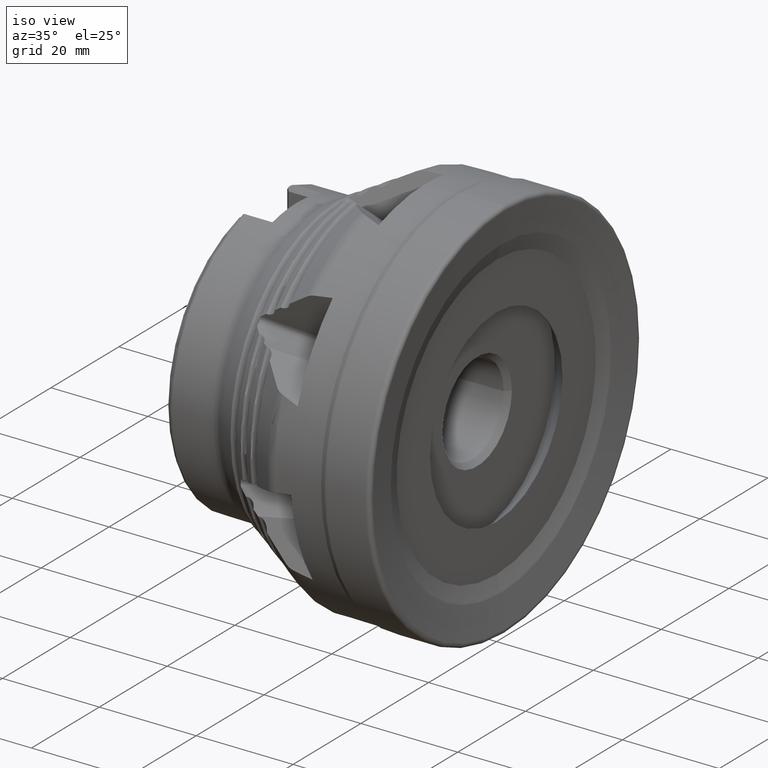
[diagram: clean part render]
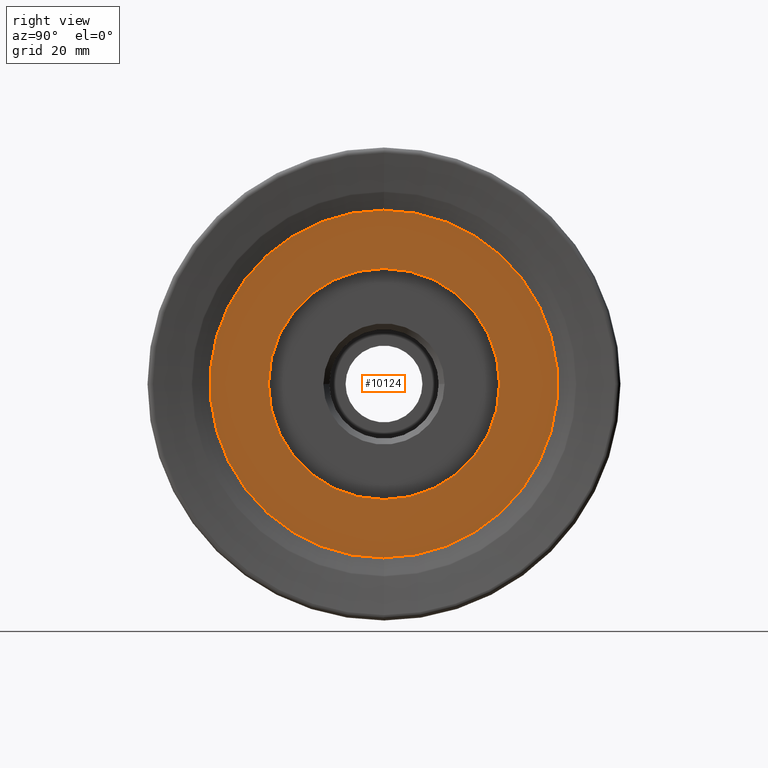
[diagram: tour spotlight — one face highlighted and labeled with its STEP entity id]
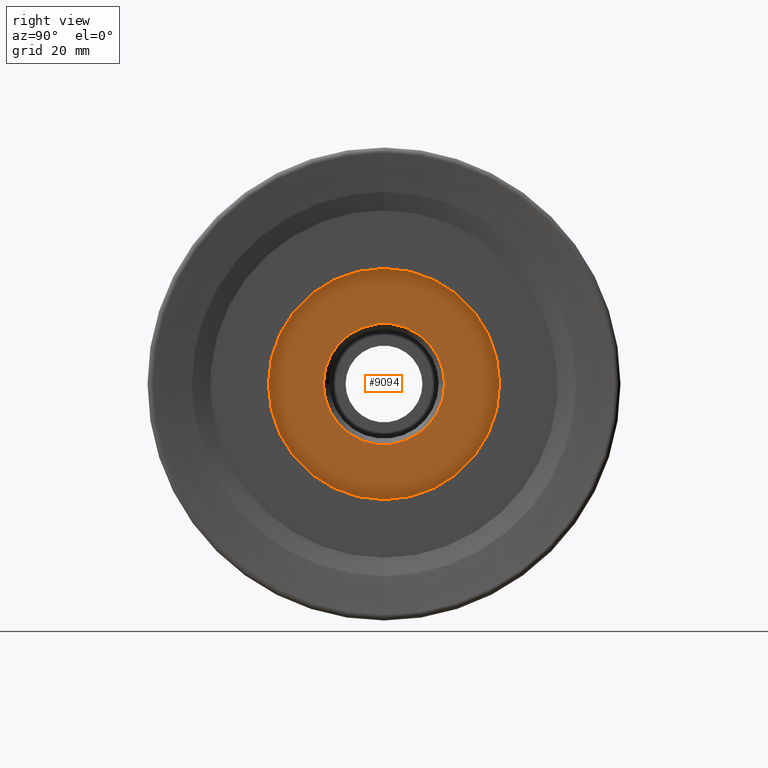
[diagram: tour spotlight — one face highlighted and labeled with its STEP entity id]
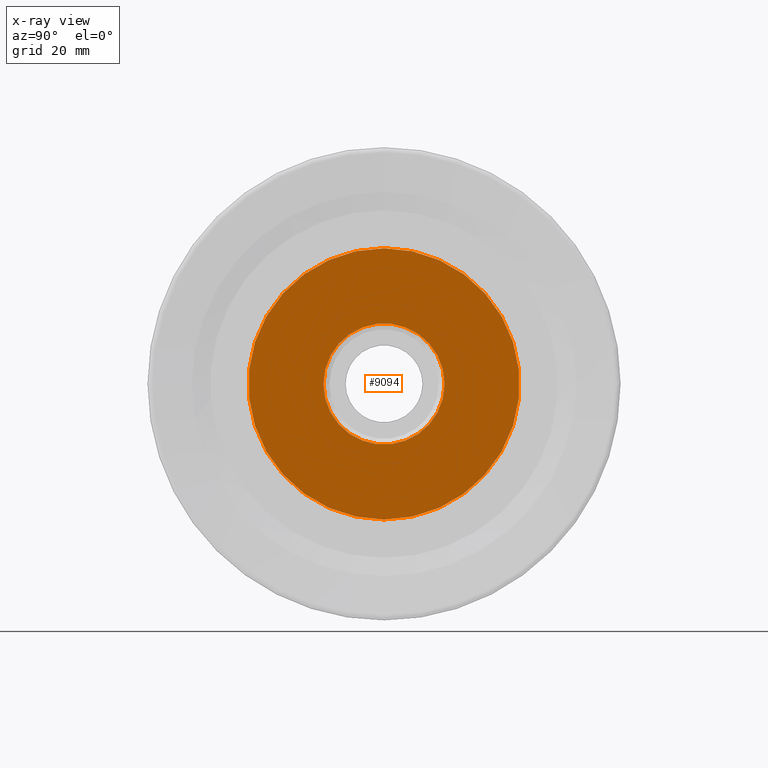
[diagram: x-ray of the same camera — body ghosted, this tour face saturated]
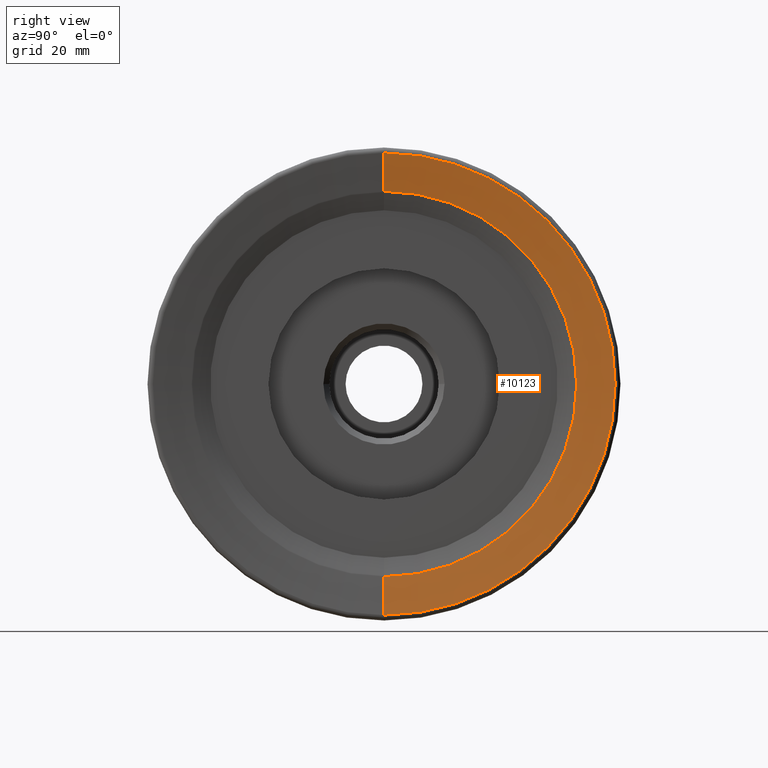
[diagram: tour spotlight — one face highlighted and labeled with its STEP entity id]
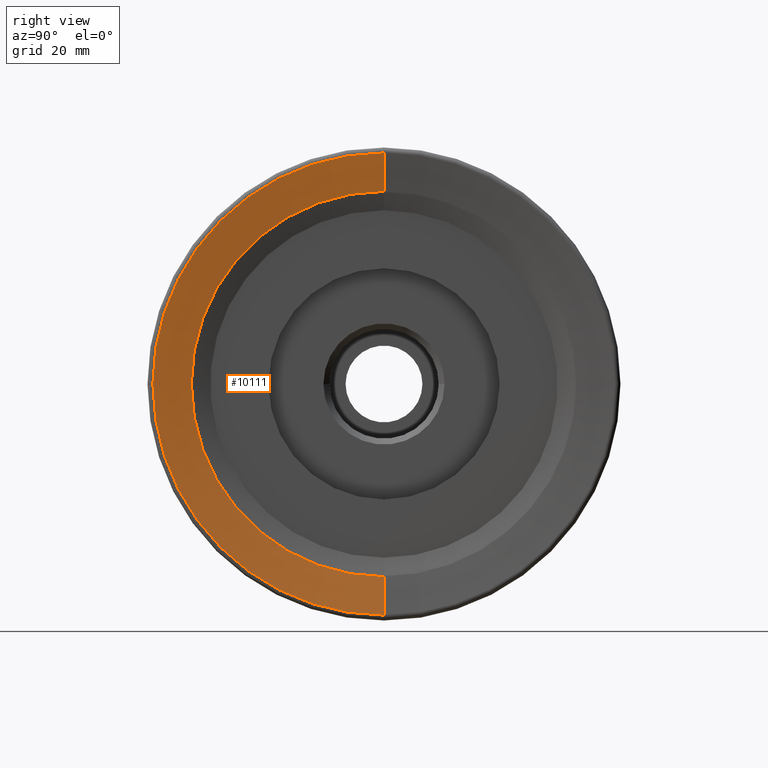
[diagram: tour spotlight — one face highlighted and labeled with its STEP entity id]
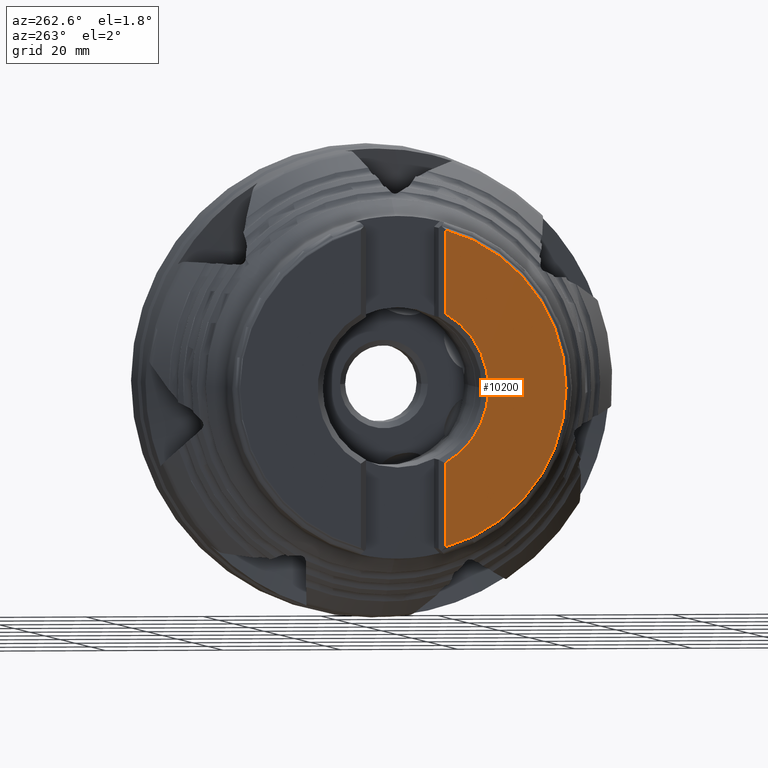
[diagram: tour spotlight — one face highlighted and labeled with its STEP entity id]
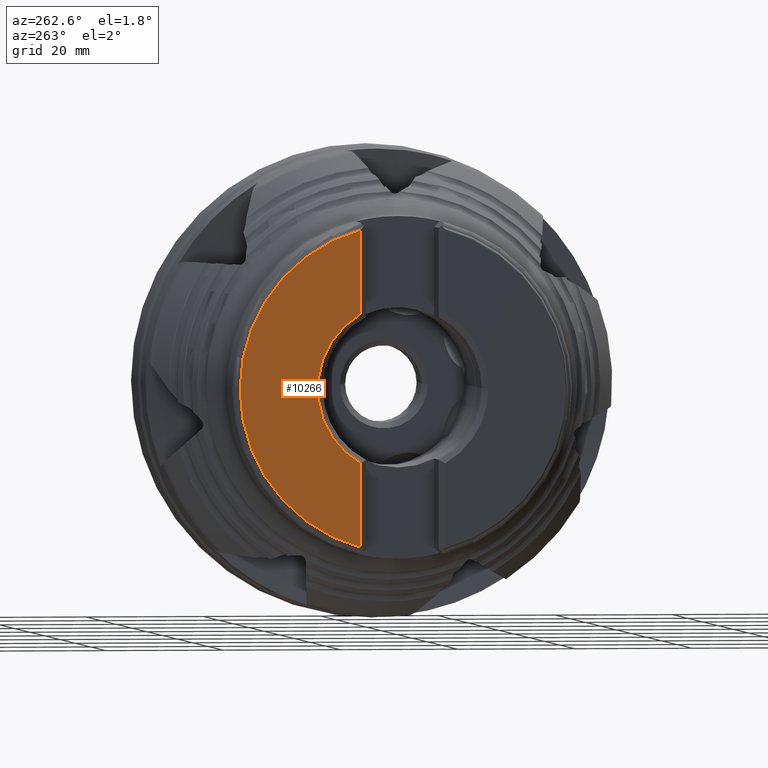
[diagram: tour spotlight — one face highlighted and labeled with its STEP entity id]
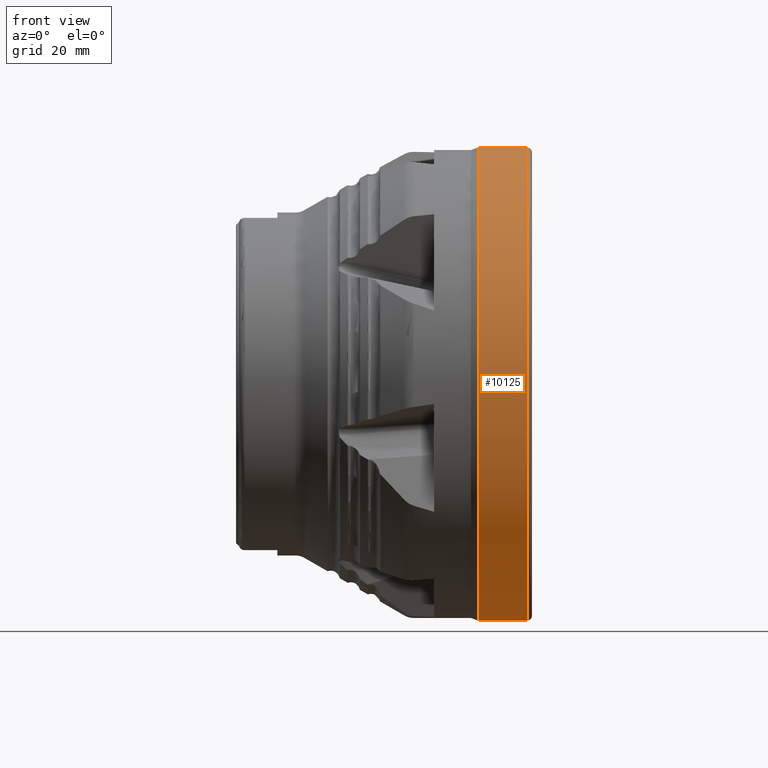
[diagram: tour spotlight — one face highlighted and labeled with its STEP entity id]
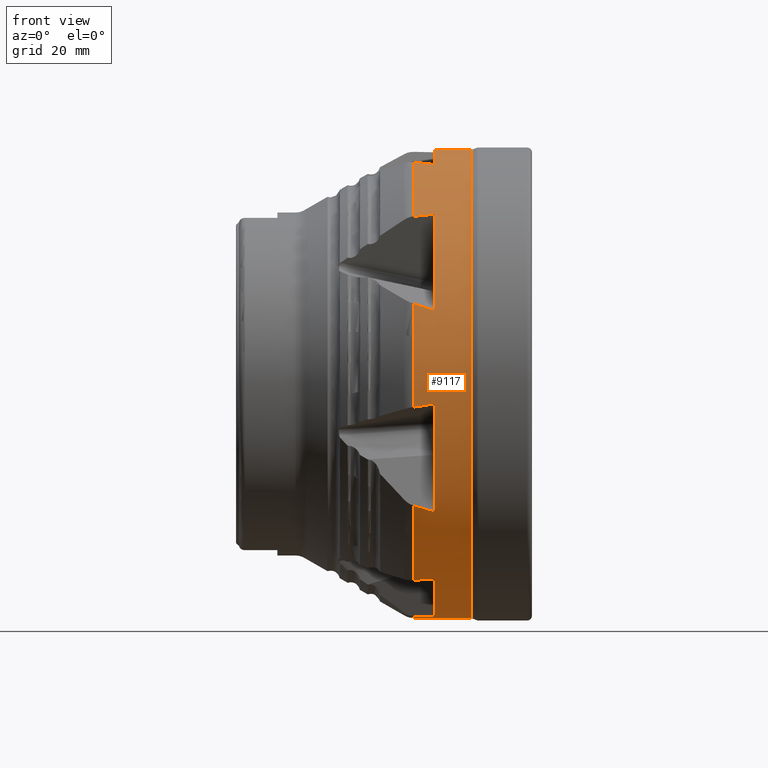
[diagram: tour spotlight — one face highlighted and labeled with its STEP entity id]
A machine part: a face-by-face anatomy tour. The part has 360 B-rep faces; the first image is the clean iso view, then the 8 largest visible faces are spotlighted one at a time (largest first), each with its STEP entity span.

Face 1 — right view, entity #10124. In plain terms, the highlighted planar face has unit normal (-1, 0, 0).
Definition (entity closure, byte-faithful):
#232 = CARTESIAN_POINT ( 'NONE',  ( -0.05000000000010915900, -19.55296481233887800, 0.0000000000000000000 ) ) ;
#233 = PLANE ( 'NONE',  #5952 ) ;
#234 = DIRECTION ( 'NONE',  ( -1.000000000000000000, 0.0000000000000000000, 0.0000000000000000000 ) ) ;
#235 = DIRECTION ( 'NONE',  ( 0.0000000000000000000, 0.0000000000000000000, 1.000000000000000000 ) ) ;
#4738 = EDGE_LOOP ( 'NONE', ( #6216, #6173 ) ) ;
#4741 = EDGE_LOOP ( 'NONE', ( #6239, #6407 ) ) ;
#5855 = AXIS2_PLACEMENT_3D ( 'NONE', #12273, #12280, #12281 ) ;
#5857 = AXIS2_PLACEMENT_3D ( 'NONE', #12279, #12285, #12286 ) ;
#5864 = AXIS2_PLACEMENT_3D ( 'NONE', #12329, #12331, #12332 ) ;
#5904 = AXIS2_PLACEMENT_3D ( 'NONE', #12943, #12945, #12946 ) ;
#5952 = AXIS2_PLACEMENT_3D ( 'NONE', #232, #234, #235 ) ;
#6173 = ORIENTED_EDGE ( 'NONE', *, *, #9911, .T. ) ;
#6216 = ORIENTED_EDGE ( 'NONE', *, *, #9897, .T. ) ;
#6239 = ORIENTED_EDGE ( 'NONE', *, *, #10045, .F. ) ;
#6407 = ORIENTED_EDGE ( 'NONE', *, *, #9895, .F. ) ;
#6508 = CARTESIAN_POINT ( 'NONE',  ( -0.05000000000010638300, 3.783971422271740700E-015, 29.38186664013200700 ) ) ;
#6638 = CARTESIAN_POINT ( 'NONE',  ( -0.05000000000011245400, 2.602331436804492900E-015, -19.55296481233887800 ) ) ;
#6699 = CARTESIAN_POINT ( 'NONE',  ( -0.05000000000010638300, 0.0000000000000000000, -29.38186664013200700 ) ) ;
#6861 = CARTESIAN_POINT ( 'NONE',  ( -0.05000000000011245400, 0.0000000000000000000, 19.55296481233887800 ) ) ;
#7034 = VERTEX_POINT ( 'NONE', #6508 ) ;
#7047 = VERTEX_POINT ( 'NONE', #6861 ) ;
#7178 = VERTEX_POINT ( 'NONE', #6699 ) ;
#7311 = VERTEX_POINT ( 'NONE', #6638 ) ;
#9895 = EDGE_CURVE ( 'NONE', #7311, #7047, #11075, .T. ) ;
#9897 = EDGE_CURVE ( 'NONE', #7178, #7034, #11077, .T. ) ;
#9911 = EDGE_CURVE ( 'NONE', #7034, #7178, #11087, .T. ) ;
#10045 = EDGE_CURVE ( 'NONE', #7047, #7311, #11159, .T. ) ;
#10124 = ADVANCED_FACE ( 'NONE', ( #11276, #11280 ), #233, .F. ) ;
#11075 = CIRCLE ( 'NONE', #5855, 19.55296481233887800 ) ;
#11077 = CIRCLE ( 'NONE', #5857, 29.38186664013200700 ) ;
#11087 = CIRCLE ( 'NONE', #5864, 29.38186664013200700 ) ;
#11159 = CIRCLE ( 'NONE', #5904, 19.55296481233887800 ) ;
#11276 = FACE_BOUND ( 'NONE', #4741, .T. ) ;
#11280 = FACE_OUTER_BOUND ( 'NONE', #4738, .T. ) ;
#12273 = CARTESIAN_POINT ( 'NONE',  ( -0.05000000000011245400, 0.0000000000000000000, 0.0000000000000000000 ) ) ;
#12279 = CARTESIAN_POINT ( 'NONE',  ( -0.05000000000010638300, 0.0000000000000000000, 0.0000000000000000000 ) ) ;
#12280 = DIRECTION ( 'NONE',  ( 1.000000000000000000, -0.0000000000000000000, -0.0000000000000000000 ) ) ;
#12281 = DIRECTION ( 'NONE',  ( 0.0000000000000000000, 0.0000000000000000000, -1.000000000000000000 ) ) ;
#12285 = DIRECTION ( 'NONE',  ( 1.000000000000000000, -0.0000000000000000000, -0.0000000000000000000 ) ) ;
#12286 = DIRECTION ( 'NONE',  ( 0.0000000000000000000, 0.0000000000000000000, -1.000000000000000000 ) ) ;
#12329 = CARTESIAN_POINT ( 'NONE',  ( -0.05000000000010638300, 0.0000000000000000000, 0.0000000000000000000 ) ) ;
#12331 = DIRECTION ( 'NONE',  ( 1.000000000000000000, -0.0000000000000000000, -0.0000000000000000000 ) ) ;
#12332 = DIRECTION ( 'NONE',  ( 0.0000000000000000000, 0.0000000000000000000, -1.000000000000000000 ) ) ;
#12943 = CARTESIAN_POINT ( 'NONE',  ( -0.05000000000011245400, 0.0000000000000000000, 0.0000000000000000000 ) ) ;
#12945 = DIRECTION ( 'NONE',  ( 1.000000000000000000, -0.0000000000000000000, -0.0000000000000000000 ) ) ;
#12946 = DIRECTION ( 'NONE',  ( 0.0000000000000000000, 0.0000000000000000000, -1.000000000000000000 ) ) ;

Face 2 — right view, entity #9094. An x-ray twin of the same camera follows (body ghosted, this face saturated) — the face is partly hidden behind the body. In plain terms, the highlighted planar face has unit normal (-1, -0, 0).
Definition (entity closure, byte-faithful):
#2146 = ORIENTED_EDGE ( 'NONE', *, *, #7662, .F. ) ;
#2255 = ORIENTED_EDGE ( 'NONE', *, *, #10047, .F. ) ;
#2305 = VERTEX_POINT ( 'NONE', #2375 ) ;
#2333 = VERTEX_POINT ( 'NONE', #2372 ) ;
#2372 = CARTESIAN_POINT ( 'NONE',  ( -3.999999999999997300, 0.0000000000000000000, 22.94633275846010500 ) ) ;
#2375 = CARTESIAN_POINT ( 'NONE',  ( -3.999999999999996400, -10.25000000000000000, 1.255262969126037200E-015 ) ) ;
#2644 = DIRECTION ( 'NONE',  ( -8.462065736472229800E-017, 1.000000000000000000, 0.0000000000000000000 ) ) ;
#2766 = CARTESIAN_POINT ( 'NONE',  ( -3.999999999999997300, -4.898425415289506100E-016, 0.0000000000000000000 ) ) ;
#2822 = ORIENTED_EDGE ( 'NONE', *, *, #10025, .F. ) ;
#2850 = ORIENTED_EDGE ( 'NONE', *, *, #7663, .F. ) ;
#2918 = DIRECTION ( 'NONE',  ( 1.000000000000000000, 1.224606353822377300E-016, -0.0000000000000000000 ) ) ;
#3251 = CARTESIAN_POINT ( 'NONE',  ( -4.000000000000000000, 23.30000000000000100, 0.0000000000000000000 ) ) ;
#3252 = PLANE ( 'NONE',  #5682 ) ;
#3253 = DIRECTION ( 'NONE',  ( -1.000000000000000000, -1.224606353822377300E-016, 0.0000000000000000000 ) ) ;
#3254 = DIRECTION ( 'NONE',  ( 1.224606353822377300E-016, -1.000000000000000000, 0.0000000000000000000 ) ) ;
#4579 = EDGE_LOOP ( 'NONE', ( #2850, #2822 ) ) ;
#4581 = EDGE_LOOP ( 'NONE', ( #2146, #2255 ) ) ;
#5110 = CIRCLE ( 'NONE', #5511, 10.25000000000000000 ) ;
#5111 = CIRCLE ( 'NONE', #5514, 22.94633275846010500 ) ;
#5511 = AXIS2_PLACEMENT_3D ( 'NONE', #2766, #2918, #2644 ) ;
#5514 = AXIS2_PLACEMENT_3D ( 'NONE', #11596, #11594, #8652 ) ;
#5682 = AXIS2_PLACEMENT_3D ( 'NONE', #3251, #3253, #3254 ) ;
#5891 = AXIS2_PLACEMENT_3D ( 'NONE', #12822, #12823, #12824 ) ;
#5906 = AXIS2_PLACEMENT_3D ( 'NONE', #12952, #12953, #12954 ) ;
#6446 = CARTESIAN_POINT ( 'NONE',  ( -3.999999999999997300, 2.810115296481822400E-015, -22.94633275846010500 ) ) ;
#6775 = CARTESIAN_POINT ( 'NONE',  ( -3.999999999999998200, 10.25000000000000000, 0.0000000000000000000 ) ) ;
#7161 = VERTEX_POINT ( 'NONE', #6446 ) ;
#7341 = VERTEX_POINT ( 'NONE', #6775 ) ;
#7662 = EDGE_CURVE ( 'NONE', #7341, #2305, #5110, .T. ) ;
#7663 = EDGE_CURVE ( 'NONE', #2333, #7161, #5111, .T. ) ;
#8652 = DIRECTION ( 'NONE',  ( 1.133987396311005500E-016, -1.000000000000000000, 0.0000000000000000000 ) ) ;
#9094 = ADVANCED_FACE ( 'NONE', ( #10728, #10731 ), #3252, .F. ) ;
#10025 = EDGE_CURVE ( 'NONE', #7161, #2333, #11143, .T. ) ;
#10047 = EDGE_CURVE ( 'NONE', #2305, #7341, #11162, .T. ) ;
#10728 = FACE_BOUND ( 'NONE', #4581, .T. ) ;
#10731 = FACE_OUTER_BOUND ( 'NONE', #4579, .T. ) ;
#11143 = CIRCLE ( 'NONE', #5891, 22.94633275846010500 ) ;
#11162 = CIRCLE ( 'NONE', #5906, 10.25000000000000000 ) ;
#11594 = DIRECTION ( 'NONE',  ( -1.000000000000000000, -1.224606353822377300E-016, 0.0000000000000000000 ) ) ;
#11596 = CARTESIAN_POINT ( 'NONE',  ( -3.999999999999997300, -3.381474524088730800E-015, 0.0000000000000000000 ) ) ;
#12822 = CARTESIAN_POINT ( 'NONE',  ( -3.999999999999997300, -3.381474524088730800E-015, 0.0000000000000000000 ) ) ;
#12823 = DIRECTION ( 'NONE',  ( -1.000000000000000000, -1.224606353822377300E-016, 0.0000000000000000000 ) ) ;
#12824 = DIRECTION ( 'NONE',  ( 1.133987396311005500E-016, -1.000000000000000000, 0.0000000000000000000 ) ) ;
#12952 = CARTESIAN_POINT ( 'NONE',  ( -3.999999999999997300, -4.898425415289506100E-016, 0.0000000000000000000 ) ) ;
#12953 = DIRECTION ( 'NONE',  ( 1.000000000000000000, 1.224606353822377300E-016, -0.0000000000000000000 ) ) ;
#12954 = DIRECTION ( 'NONE',  ( -8.462065736472229800E-017, 1.000000000000000000, 0.0000000000000000000 ) ) ;

Face 3 — right view, entity #10123. In plain terms, the highlighted conical surface has half-angle 82.288 deg.
Definition (entity closure, byte-faithful):
#223 = DIRECTION ( 'NONE',  ( 0.0000000000000000000, 0.0000000000000000000, -1.000000000000000000 ) ) ;
#229 = DIRECTION ( 'NONE',  ( 1.000000000000000000, -0.0000000000000000000, -0.0000000000000000000 ) ) ;
#230 = CARTESIAN_POINT ( 'NONE',  ( 1.795837475865317500, 0.0000000000000000000, 0.0000000000000000000 ) ) ;
#2322 = VERTEX_POINT ( 'NONE', #2499 ) ;
#2499 = CARTESIAN_POINT ( 'NONE',  ( 1.795837475865317500, 4.786855113661762100E-015, 39.08763830513873200 ) ) ;
#4743 = EDGE_LOOP ( 'NONE', ( #6326, #6194, #6247, #6203 ) ) ;
#5869 = AXIS2_PLACEMENT_3D ( 'NONE', #12453, #12460, #12461 ) ;
#5900 = AXIS2_PLACEMENT_3D ( 'NONE', #12880, #12896, #12897 ) ;
#5972 = AXIS2_PLACEMENT_3D ( 'NONE', #230, #229, #223 ) ;
#6194 = ORIENTED_EDGE ( 'NONE', *, *, #9949, .F. ) ;
#6203 = ORIENTED_EDGE ( 'NONE', *, *, #10035, .T. ) ;
#6247 = ORIENTED_EDGE ( 'NONE', *, *, #9980, .T. ) ;
#6326 = ORIENTED_EDGE ( 'NONE', *, *, #9962, .F. ) ;
#6645 = CARTESIAN_POINT ( 'NONE',  ( 1.795837475865317500, 0.0000000000000000000, -39.08763830513873200 ) ) ;
#6697 = CARTESIAN_POINT ( 'NONE',  ( 0.9162408097098568800, 0.0000000000000000000, -32.59263010940147600 ) ) ;
#6751 = CARTESIAN_POINT ( 'NONE',  ( 0.9162408097098568800, 4.389150563794489400E-015, 32.59263010940147600 ) ) ;
#7029 = VERTEX_POINT ( 'NONE', #6645 ) ;
#7169 = VERTEX_POINT ( 'NONE', #6697 ) ;
#7322 = VERTEX_POINT ( 'NONE', #6751 ) ;
#9949 = EDGE_CURVE ( 'NONE', #7169, #7322, #11108, .T. ) ;
#9962 = EDGE_CURVE ( 'NONE', #7322, #2322, #11115, .T. ) ;
#9980 = EDGE_CURVE ( 'NONE', #7169, #7029, #11116, .T. ) ;
#10035 = EDGE_CURVE ( 'NONE', #7029, #2322, #11150, .T. ) ;
#10123 = ADVANCED_FACE ( 'NONE', ( #11275 ), #11274, .F. ) ;
#11108 = CIRCLE ( 'NONE', #5869, 32.59263010940147600 ) ;
#11113 = VECTOR ( 'NONE', #12542, 1000.000000000000000 ) ;
#11115 = LINE ( 'NONE', #12541, #11113 ) ;
#11116 = LINE ( 'NONE', #12600, #11122 ) ;
#11122 = VECTOR ( 'NONE', #12602, 1000.000000000000000 ) ;
#11150 = CIRCLE ( 'NONE', #5900, 39.08763830513873200 ) ;
#11274 = CONICAL_SURFACE ( 'NONE', #5972, 39.08763830513873200, 1.436188690054001500 ) ;
#11275 = FACE_OUTER_BOUND ( 'NONE', #4743, .T. ) ;
#12453 = CARTESIAN_POINT ( 'NONE',  ( 0.9162408097098568800, 0.0000000000000000000, 0.0000000000000000000 ) ) ;
#12460 = DIRECTION ( 'NONE',  ( 1.000000000000000000, -0.0000000000000000000, -0.0000000000000000000 ) ) ;
#12461 = DIRECTION ( 'NONE',  ( 0.0000000000000000000, 0.0000000000000000000, -1.000000000000000000 ) ) ;
#12541 = CARTESIAN_POINT ( 'NONE',  ( 1.795837475865317500, 4.786855113661762100E-015, 39.08763830513873200 ) ) ;
#12542 = DIRECTION ( 'NONE',  ( 0.1342015073815443800, 1.213568721627090000E-016, 0.9909540632221663900 ) ) ;
#12600 = CARTESIAN_POINT ( 'NONE',  ( 1.795837475865317500, 0.0000000000000000000, -39.08763830513873200 ) ) ;
#12602 = DIRECTION ( 'NONE',  ( 0.1342015073815443800, 0.0000000000000000000, -0.9909540632221663900 ) ) ;
#12880 = CARTESIAN_POINT ( 'NONE',  ( 1.795837475865317500, 0.0000000000000000000, 0.0000000000000000000 ) ) ;
#12896 = DIRECTION ( 'NONE',  ( 1.000000000000000000, -0.0000000000000000000, -0.0000000000000000000 ) ) ;
#12897 = DIRECTION ( 'NONE',  ( 0.0000000000000000000, 0.0000000000000000000, -1.000000000000000000 ) ) ;

Face 4 — right view, entity #10111. In plain terms, the highlighted conical surface has half-angle 82.288 deg.
Definition (entity closure, byte-faithful):
#181 = DIRECTION ( 'NONE',  ( 0.0000000000000000000, 0.0000000000000000000, -1.000000000000000000 ) ) ;
#189 = DIRECTION ( 'NONE',  ( 1.000000000000000000, -0.0000000000000000000, -0.0000000000000000000 ) ) ;
#190 = CARTESIAN_POINT ( 'NONE',  ( 1.795837475865317500, 0.0000000000000000000, 0.0000000000000000000 ) ) ;
#1420 = ORIENTED_EDGE ( 'NONE', *, *, #9969, .F. ) ;
#1435 = ORIENTED_EDGE ( 'NONE', *, *, #9980, .F. ) ;
#1473 = ORIENTED_EDGE ( 'NONE', *, *, #9962, .T. ) ;
#1625 = ORIENTED_EDGE ( 'NONE', *, *, #7454, .T. ) ;
#2322 = VERTEX_POINT ( 'NONE', #2499 ) ;
#2499 = CARTESIAN_POINT ( 'NONE',  ( 1.795837475865317500, 4.786855113661762100E-015, 39.08763830513873200 ) ) ;
#4638 = EDGE_LOOP ( 'NONE', ( #1420, #1473, #1625, #1435 ) ) ;
#4909 = CIRCLE ( 'NONE', #7978, 39.08763830513873200 ) ;
#5882 = AXIS2_PLACEMENT_3D ( 'NONE', #12555, #12561, #12562 ) ;
#5960 = AXIS2_PLACEMENT_3D ( 'NONE', #190, #189, #181 ) ;
#6474 = DIRECTION ( 'NONE',  ( 0.0000000000000000000, 0.0000000000000000000, -1.000000000000000000 ) ) ;
#6645 = CARTESIAN_POINT ( 'NONE',  ( 1.795837475865317500, 0.0000000000000000000, -39.08763830513873200 ) ) ;
#6697 = CARTESIAN_POINT ( 'NONE',  ( 0.9162408097098568800, 0.0000000000000000000, -32.59263010940147600 ) ) ;
#6751 = CARTESIAN_POINT ( 'NONE',  ( 0.9162408097098568800, 4.389150563794489400E-015, 32.59263010940147600 ) ) ;
#6858 = CARTESIAN_POINT ( 'NONE',  ( 1.795837475865317500, 0.0000000000000000000, 0.0000000000000000000 ) ) ;
#6859 = DIRECTION ( 'NONE',  ( 1.000000000000000000, -0.0000000000000000000, -0.0000000000000000000 ) ) ;
#7029 = VERTEX_POINT ( 'NONE', #6645 ) ;
#7169 = VERTEX_POINT ( 'NONE', #6697 ) ;
#7322 = VERTEX_POINT ( 'NONE', #6751 ) ;
#7454 = EDGE_CURVE ( 'NONE', #2322, #7029, #4909, .T. ) ;
#7978 = AXIS2_PLACEMENT_3D ( 'NONE', #6858, #6859, #6474 ) ;
#9962 = EDGE_CURVE ( 'NONE', #7322, #2322, #11115, .T. ) ;
#9969 = EDGE_CURVE ( 'NONE', #7322, #7169, #11121, .T. ) ;
#9980 = EDGE_CURVE ( 'NONE', #7169, #7029, #11116, .T. ) ;
#10111 = ADVANCED_FACE ( 'NONE', ( #11251 ), #11253, .F. ) ;
#11113 = VECTOR ( 'NONE', #12542, 1000.000000000000000 ) ;
#11115 = LINE ( 'NONE', #12541, #11113 ) ;
#11116 = LINE ( 'NONE', #12600, #11122 ) ;
#11121 = CIRCLE ( 'NONE', #5882, 32.59263010940147600 ) ;
#11122 = VECTOR ( 'NONE', #12602, 1000.000000000000000 ) ;
#11251 = FACE_OUTER_BOUND ( 'NONE', #4638, .T. ) ;
#11253 = CONICAL_SURFACE ( 'NONE', #5960, 39.08763830513873200, 1.436188690054001500 ) ;
#12541 = CARTESIAN_POINT ( 'NONE',  ( 1.795837475865317500, 4.786855113661762100E-015, 39.08763830513873200 ) ) ;
#12542 = DIRECTION ( 'NONE',  ( 0.1342015073815443800, 1.213568721627090000E-016, 0.9909540632221663900 ) ) ;
#12555 = CARTESIAN_POINT ( 'NONE',  ( 0.9162408097098568800, 0.0000000000000000000, 0.0000000000000000000 ) ) ;
#12561 = DIRECTION ( 'NONE',  ( 1.000000000000000000, -0.0000000000000000000, -0.0000000000000000000 ) ) ;
#12562 = DIRECTION ( 'NONE',  ( 0.0000000000000000000, 0.0000000000000000000, -1.000000000000000000 ) ) ;
#12600 = CARTESIAN_POINT ( 'NONE',  ( 1.795837475865317500, 0.0000000000000000000, -39.08763830513873200 ) ) ;
#12602 = DIRECTION ( 'NONE',  ( 0.1342015073815443800, 0.0000000000000000000, -0.9909540632221663900 ) ) ;

Face 5 — auxiliary view, entity #10200. In plain terms, the highlighted planar face has unit normal (-1, 0, 0).
Definition (entity closure, byte-faithful):
#466 = CARTESIAN_POINT ( 'NONE',  ( -48.25000000000008500, 27.78759070216124600, 0.0000000000000000000 ) ) ;
#467 = PLANE ( 'NONE',  #960 ) ;
#469 = DIRECTION ( 'NONE',  ( -1.000000000000000000, 0.0000000000000000000, 0.0000000000000000000 ) ) ;
#470 = DIRECTION ( 'NONE',  ( 0.0000000000000000000, 0.0000000000000000000, 1.000000000000000000 ) ) ;
#960 = AXIS2_PLACEMENT_3D ( 'NONE', #466, #469, #470 ) ;
#1170 = CARTESIAN_POINT ( 'NONE',  ( -48.25000000000017100, -5.908725657192990800E-015, 0.0000000000000000000 ) ) ;
#1172 = DIRECTION ( 'NONE',  ( 1.000000000000000000, 1.224606353822377300E-016, -0.0000000000000000000 ) ) ;
#1174 = DIRECTION ( 'NONE',  ( 0.0000000000000000000, 1.000000000000000000, 0.0000000000000000000 ) ) ;
#4787 = EDGE_LOOP ( 'NONE', ( #6303, #6349, #6290, #6367, #6423 ) ) ;
#4982 = CIRCLE ( 'NONE', #8000, 14.57500000000001000 ) ;
#5829 = AXIS2_PLACEMENT_3D ( 'NONE', #12075, #12086, #12087 ) ;
#5839 = AXIS2_PLACEMENT_3D ( 'NONE', #12180, #12184, #12185 ) ;
#6290 = ORIENTED_EDGE ( 'NONE', *, *, #7515, .T. ) ;
#6303 = ORIENTED_EDGE ( 'NONE', *, *, #9830, .F. ) ;
#6349 = ORIENTED_EDGE ( 'NONE', *, *, #9843, .T. ) ;
#6367 = ORIENTED_EDGE ( 'NONE', *, *, #9856, .T. ) ;
#6423 = ORIENTED_EDGE ( 'NONE', *, *, #9857, .T. ) ;
#6456 = CARTESIAN_POINT ( 'NONE',  ( -48.25000000000017100, -7.200000000000002800, -12.67243563802950800 ) ) ;
#6541 = CARTESIAN_POINT ( 'NONE',  ( -48.25000000000017100, -7.200000000000002800, 26.83859528795868600 ) ) ;
#6605 = CARTESIAN_POINT ( 'NONE',  ( -48.25000000000017100, -7.200000000000080100, -26.83859528795866800 ) ) ;
#6621 = CARTESIAN_POINT ( 'NONE',  ( -48.25000000000017100, -7.200000000000085400, 12.67243563802946000 ) ) ;
#6730 = CARTESIAN_POINT ( 'NONE',  ( -48.25000000000017100, -14.57500000000001400, 0.0000000000000000000 ) ) ;
#7063 = VERTEX_POINT ( 'NONE', #6456 ) ;
#7097 = VERTEX_POINT ( 'NONE', #6730 ) ;
#7264 = VERTEX_POINT ( 'NONE', #6541 ) ;
#7284 = VERTEX_POINT ( 'NONE', #6605 ) ;
#7297 = VERTEX_POINT ( 'NONE', #6621 ) ;
#7515 = EDGE_CURVE ( 'NONE', #7297, #7097, #4982, .T. ) ;
#8000 = AXIS2_PLACEMENT_3D ( 'NONE', #1170, #1172, #1174 ) ;
#9830 = EDGE_CURVE ( 'NONE', #7264, #7284, #10997, .T. ) ;
#9843 = EDGE_CURVE ( 'NONE', #7264, #7297, #10999, .T. ) ;
#9856 = EDGE_CURVE ( 'NONE', #7097, #7063, #11018, .T. ) ;
#9857 = EDGE_CURVE ( 'NONE', #7063, #7284, #11015, .T. ) ;
#10200 = ADVANCED_FACE ( 'NONE', ( #11424 ), #467, .T. ) ;
#10997 = CIRCLE ( 'NONE', #5829, 27.78759070216124600 ) ;
#10999 = LINE ( 'NONE', #12132, #11004 ) ;
#11004 = VECTOR ( 'NONE', #12133, 1000.000000000000000 ) ;
#11010 = VECTOR ( 'NONE', #12187, 1000.000000000000000 ) ;
#11015 = LINE ( 'NONE', #12186, #11010 ) ;
#11018 = CIRCLE ( 'NONE', #5839, 14.57500000000001000 ) ;
#11424 = FACE_OUTER_BOUND ( 'NONE', #4787, .T. ) ;
#12075 = CARTESIAN_POINT ( 'NONE',  ( -48.25000000000017100, 0.0000000000000000000, 0.0000000000000000000 ) ) ;
#12086 = DIRECTION ( 'NONE',  ( 1.000000000000000000, -0.0000000000000000000, -0.0000000000000000000 ) ) ;
#12087 = DIRECTION ( 'NONE',  ( 0.0000000000000000000, 0.0000000000000000000, -1.000000000000000000 ) ) ;
#12132 = CARTESIAN_POINT ( 'NONE',  ( -48.25000000000008500, -7.200000000000003700, 13.19055059502816000 ) ) ;
#12133 = DIRECTION ( 'NONE',  ( 0.0000000000000000000, -5.091729174068665400E-017, -1.000000000000000000 ) ) ;
#12180 = CARTESIAN_POINT ( 'NONE',  ( -48.25000000000017100, -5.908725657192990800E-015, 0.0000000000000000000 ) ) ;
#12184 = DIRECTION ( 'NONE',  ( 1.000000000000000000, 1.224606353822377300E-016, -0.0000000000000000000 ) ) ;
#12185 = DIRECTION ( 'NONE',  ( 0.0000000000000000000, 1.000000000000000000, 0.0000000000000000000 ) ) ;
#12186 = CARTESIAN_POINT ( 'NONE',  ( -48.25000000000008500, -7.199999999999997500, -27.08708542886883600 ) ) ;
#12187 = DIRECTION ( 'NONE',  ( 0.0000000000000000000, 3.055037504441199100E-016, -1.000000000000000000 ) ) ;

Face 6 — auxiliary view, entity #10266. In plain terms, the highlighted planar face has unit normal (-1, 0, 0).
Definition (entity closure, byte-faithful):
#667 = PLANE ( 'NONE',  #1038 ) ;
#676 = CARTESIAN_POINT ( 'NONE',  ( -48.25000000000008500, 27.78759070216124600, 0.0000000000000000000 ) ) ;
#684 = DIRECTION ( 'NONE',  ( -1.000000000000000000, 0.0000000000000000000, 0.0000000000000000000 ) ) ;
#685 = DIRECTION ( 'NONE',  ( 0.0000000000000000000, 0.0000000000000000000, 1.000000000000000000 ) ) ;
#1038 = AXIS2_PLACEMENT_3D ( 'NONE', #676, #684, #685 ) ;
#4798 = EDGE_LOOP ( 'NONE', ( #6149, #6410, #6208, #6329 ) ) ;
#5828 = AXIS2_PLACEMENT_3D ( 'NONE', #12064, #12066, #12067 ) ;
#5831 = AXIS2_PLACEMENT_3D ( 'NONE', #12102, #12104, #12105 ) ;
#6149 = ORIENTED_EDGE ( 'NONE', *, *, #9835, .T. ) ;
#6208 = ORIENTED_EDGE ( 'NONE', *, *, #9825, .F. ) ;
#6329 = ORIENTED_EDGE ( 'NONE', *, *, #9836, .T. ) ;
#6410 = ORIENTED_EDGE ( 'NONE', *, *, #9834, .T. ) ;
#6455 = CARTESIAN_POINT ( 'NONE',  ( -48.25000000000017100, 7.200000000000088100, 26.83859528795866100 ) ) ;
#6512 = CARTESIAN_POINT ( 'NONE',  ( -48.25000000000017100, 7.200000000000001100, -26.83859528795868600 ) ) ;
#6611 = CARTESIAN_POINT ( 'NONE',  ( -48.25000000000017100, 7.200000000000008200, 12.67243563802949600 ) ) ;
#6702 = CARTESIAN_POINT ( 'NONE',  ( -48.25000000000017100, 7.200000000000089000, -12.67243563802945200 ) ) ;
#7093 = VERTEX_POINT ( 'NONE', #6455 ) ;
#7094 = VERTEX_POINT ( 'NONE', #6702 ) ;
#7112 = VERTEX_POINT ( 'NONE', #6611 ) ;
#7246 = VERTEX_POINT ( 'NONE', #6512 ) ;
#9825 = EDGE_CURVE ( 'NONE', #7246, #7093, #10993, .T. ) ;
#9834 = EDGE_CURVE ( 'NONE', #7112, #7093, #10996, .T. ) ;
#9835 = EDGE_CURVE ( 'NONE', #7094, #7112, #11000, .T. ) ;
#9836 = EDGE_CURVE ( 'NONE', #7246, #7094, #10987, .T. ) ;
#10266 = ADVANCED_FACE ( 'NONE', ( #11540 ), #667, .T. ) ;
#10985 = VECTOR ( 'NONE', #12107, 1000.000000000000000 ) ;
#10987 = LINE ( 'NONE', #12106, #10985 ) ;
#10993 = CIRCLE ( 'NONE', #5828, 27.78759070216124600 ) ;
#10994 = VECTOR ( 'NONE', #12101, 1000.000000000000000 ) ;
#10996 = LINE ( 'NONE', #12100, #10994 ) ;
#11000 = CIRCLE ( 'NONE', #5831, 14.57500000000001000 ) ;
#11540 = FACE_OUTER_BOUND ( 'NONE', #4798, .T. ) ;
#12064 = CARTESIAN_POINT ( 'NONE',  ( -48.25000000000017100, 0.0000000000000000000, 0.0000000000000000000 ) ) ;
#12066 = DIRECTION ( 'NONE',  ( 1.000000000000000000, -0.0000000000000000000, -0.0000000000000000000 ) ) ;
#12067 = DIRECTION ( 'NONE',  ( 0.0000000000000000000, 0.0000000000000000000, -1.000000000000000000 ) ) ;
#12100 = CARTESIAN_POINT ( 'NONE',  ( -48.25000000000008500, 7.200000000000007300, 27.08708542886882900 ) ) ;
#12101 = DIRECTION ( 'NONE',  ( 0.0000000000000000000, -5.091729174068665400E-017, 1.000000000000000000 ) ) ;
#12102 = CARTESIAN_POINT ( 'NONE',  ( -48.25000000000017100, -5.908725657192990800E-015, 0.0000000000000000000 ) ) ;
#12104 = DIRECTION ( 'NONE',  ( 1.000000000000000000, 1.224606353822377300E-016, -0.0000000000000000000 ) ) ;
#12105 = DIRECTION ( 'NONE',  ( 0.0000000000000000000, 1.000000000000000000, 0.0000000000000000000 ) ) ;
#12106 = CARTESIAN_POINT ( 'NONE',  ( -48.25000000000008500, 7.200000000000003700, -13.19055059502815800 ) ) ;
#12107 = DIRECTION ( 'NONE',  ( 0.0000000000000000000, 3.055037504441199100E-016, 1.000000000000000000 ) ) ;

Face 7 — front view, entity #10125. In plain terms, the highlighted cylindrical surface (partial cylindrical patch) has radius 40 mm, axis along (1, -0, -0).
Definition (entity closure, byte-faithful):
#226 = DIRECTION ( 'NONE',  ( 0.0000000000000000000, 0.0000000000000000000, -1.000000000000000000 ) ) ;
#231 = DIRECTION ( 'NONE',  ( 1.000000000000000000, -0.0000000000000000000, -0.0000000000000000000 ) ) ;
#237 = CARTESIAN_POINT ( 'NONE',  ( 6.037240732218118700, 0.0000000000000000000, 0.0000000000000000000 ) ) ;
#2300 = VERTEX_POINT ( 'NONE', #2489 ) ;
#2306 = VERTEX_POINT ( 'NONE', #2374 ) ;
#2374 = CARTESIAN_POINT ( 'NONE',  ( 0.9987052883598619400, 0.0000000000000000000, -40.00000000000000000 ) ) ;
#2489 = CARTESIAN_POINT ( 'NONE',  ( -7.268364287083554300, 0.0000000000000000000, -40.00000000000000000 ) ) ;
#4735 = EDGE_LOOP ( 'NONE', ( #6142, #6325, #6388, #6184 ) ) ;
#4908 = VECTOR ( 'NONE', #9010, 1000.000000000000000 ) ;
#4913 = LINE ( 'NONE', #6453, #4908 ) ;
#4918 = VECTOR ( 'NONE', #8946, 1000.000000000000000 ) ;
#4925 = LINE ( 'NONE', #8929, #4918 ) ;
#5859 = AXIS2_PLACEMENT_3D ( 'NONE', #12284, #12292, #12293 ) ;
#5860 = AXIS2_PLACEMENT_3D ( 'NONE', #12288, #12295, #12296 ) ;
#5966 = AXIS2_PLACEMENT_3D ( 'NONE', #237, #231, #226 ) ;
#6142 = ORIENTED_EDGE ( 'NONE', *, *, #7459, .F. ) ;
#6184 = ORIENTED_EDGE ( 'NONE', *, *, #9900, .F. ) ;
#6325 = ORIENTED_EDGE ( 'NONE', *, *, #9899, .T. ) ;
#6388 = ORIENTED_EDGE ( 'NONE', *, *, #7469, .T. ) ;
#6453 = CARTESIAN_POINT ( 'NONE',  ( 6.037240732218118700, 4.898587196589413000E-015, 40.00000000000000000 ) ) ;
#6578 = CARTESIAN_POINT ( 'NONE',  ( -7.268364287083554300, 4.898587196589413000E-015, 40.00000000000000000 ) ) ;
#6659 = CARTESIAN_POINT ( 'NONE',  ( 0.9987052883598619400, 4.898587196589413000E-015, 40.00000000000000000 ) ) ;
#7150 = VERTEX_POINT ( 'NONE', #6578 ) ;
#7198 = VERTEX_POINT ( 'NONE', #6659 ) ;
#7459 = EDGE_CURVE ( 'NONE', #7150, #7198, #4913, .T. ) ;
#7469 = EDGE_CURVE ( 'NONE', #2300, #2306, #4925, .T. ) ;
#8929 = CARTESIAN_POINT ( 'NONE',  ( 6.037240732218118700, 0.0000000000000000000, -40.00000000000000000 ) ) ;
#8946 = DIRECTION ( 'NONE',  ( 1.000000000000000000, -0.0000000000000000000, -0.0000000000000000000 ) ) ;
#9010 = DIRECTION ( 'NONE',  ( 1.000000000000000000, -0.0000000000000000000, -0.0000000000000000000 ) ) ;
#9899 = EDGE_CURVE ( 'NONE', #7150, #2300, #11081, .T. ) ;
#9900 = EDGE_CURVE ( 'NONE', #7198, #2306, #11083, .T. ) ;
#10125 = ADVANCED_FACE ( 'NONE', ( #11281 ), #11282, .T. ) ;
#11081 = CIRCLE ( 'NONE', #5859, 40.00000000000000000 ) ;
#11083 = CIRCLE ( 'NONE', #5860, 40.00000000000000000 ) ;
#11281 = FACE_OUTER_BOUND ( 'NONE', #4735, .T. ) ;
#11282 = CYLINDRICAL_SURFACE ( 'NONE', #5966, 40.00000000000000000 ) ;
#12284 = CARTESIAN_POINT ( 'NONE',  ( -7.268364287083554300, 0.0000000000000000000, 0.0000000000000000000 ) ) ;
#12288 = CARTESIAN_POINT ( 'NONE',  ( 0.9987052883598619400, 0.0000000000000000000, 0.0000000000000000000 ) ) ;
#12292 = DIRECTION ( 'NONE',  ( 1.000000000000000000, -0.0000000000000000000, -0.0000000000000000000 ) ) ;
#12293 = DIRECTION ( 'NONE',  ( 0.0000000000000000000, 0.0000000000000000000, -1.000000000000000000 ) ) ;
#12295 = DIRECTION ( 'NONE',  ( 1.000000000000000000, -0.0000000000000000000, -0.0000000000000000000 ) ) ;
#12296 = DIRECTION ( 'NONE',  ( 0.0000000000000000000, 0.0000000000000000000, -1.000000000000000000 ) ) ;

Face 8 — front view, entity #9117. In plain terms, the highlighted cylindrical surface (partial cylindrical patch) has radius 39.575 mm, axis along (1, -0, -0).
Definition (entity closure, byte-faithful):
#797 = CARTESIAN_POINT ( 'NONE',  ( -18.25062266157716500, -21.50343707335374800, -33.22322710141681100 ) ) ;
#845 = CARTESIAN_POINT ( 'NONE',  ( -14.74297361145911500, -21.93707273636906100, -32.93851036037221300 ) ) ;
#846 = CARTESIAN_POINT ( 'NONE',  ( -18.25062266157717200, -33.80899329616487800, -20.57018709929200600 ) ) ;
#859 = CARTESIAN_POINT ( 'NONE',  ( -14.74297361145644000, -33.15292004178408500, -21.61167549504370200 ) ) ;
#868 = CARTESIAN_POINT ( 'NONE',  ( -14.74297361145644000, -3.773819256982307900, -39.39465589665216100 ) ) ;
#2090 = ORIENTED_EDGE ( 'NONE', *, *, #7658, .T. ) ;
#2102 = ORIENTED_EDGE ( 'NONE', *, *, #7643, .F. ) ;
#2137 = ORIENTED_EDGE ( 'NONE', *, *, #7645, .T. ) ;
#2142 = ORIENTED_EDGE ( 'NONE', *, *, #7666, .T. ) ;
#2184 = ORIENTED_EDGE ( 'NONE', *, *, #7665, .T. ) ;
#2209 = ORIENTED_EDGE ( 'NONE', *, *, #7664, .T. ) ;
#2299 = VERTEX_POINT ( 'NONE', #2518 ) ;
#2518 = CARTESIAN_POINT ( 'NONE',  ( -14.74297361145644000, -37.56719583879838400, 12.44533735217214400 ) ) ;
#2703 = DIRECTION ( 'NONE',  ( 0.0000000000000000000, 0.0000000000000000000, -1.000000000000000000 ) ) ;
#2705 = DIRECTION ( 'NONE',  ( 1.000000000000000000, -0.0000000000000000000, -0.0000000000000000000 ) ) ;
#2718 = CARTESIAN_POINT ( 'NONE',  ( -18.25062266157716800, 0.0000000000000000000, 0.0000000000000000000 ) ) ;
#2870 = ORIENTED_EDGE ( 'NONE', *, *, #7659, .T. ) ;
#3321 = DIRECTION ( 'NONE',  ( 0.0000000000000000000, 0.0000000000000000000, -1.000000000000000000 ) ) ;
#3322 = DIRECTION ( 'NONE',  ( 1.000000000000000000, -0.0000000000000000000, -0.0000000000000000000 ) ) ;
#3323 = CARTESIAN_POINT ( 'NONE',  ( 0.0000000000000000000, 0.0000000000000000000, 0.0000000000000000000 ) ) ;
#4582 = EDGE_LOOP ( 'NONE', ( #2102, #2090, #2870, #7447, #9515, #2209, #2184, #2142, #9989, #9496, #9972, #7419, #7403, #7411, #7416, #9542, #2137, #9916 ) ) ;
#5038 = CIRCLE ( 'NONE', #5415, 39.57500000000001000 ) ;
#5096 = LINE ( 'NONE', #8097, #5100 ) ;
#5097 = LINE ( 'NONE', #8084, #5098 ) ;
#5098 = VECTOR ( 'NONE', #8093, 1000.000000000000000 ) ;
#5100 = VECTOR ( 'NONE', #8096, 1000.000000000000000 ) ;
#5108 = CIRCLE ( 'NONE', #5494, 39.57500000000001000 ) ;
#5109 = CIRCLE ( 'NONE', #5507, 39.57500000000001000 ) ;
#5112 = CIRCLE ( 'NONE', #5502, 39.57500000000001000 ) ;
#5113 = CIRCLE ( 'NONE', #5520, 39.57500000000001000 ) ;
#5114 = CIRCLE ( 'NONE', #5524, 39.57500000000001000 ) ;
#5116 = CIRCLE ( 'NONE', #5516, 39.57500000000001000 ) ;
#5118 = CIRCLE ( 'NONE', #5530, 39.57500000000001000 ) ;
#5122 = CIRCLE ( 'NONE', #5537, 39.57500000000001000 ) ;
#5415 = AXIS2_PLACEMENT_3D ( 'NONE', #2718, #2705, #2703 ) ;
#5494 = AXIS2_PLACEMENT_3D ( 'NONE', #8688, #8694, #8376 ) ;
#5502 = AXIS2_PLACEMENT_3D ( 'NONE', #8396, #8531, #8406 ) ;
#5507 = AXIS2_PLACEMENT_3D ( 'NONE', #8379, #11595, #11597 ) ;
#5516 = AXIS2_PLACEMENT_3D ( 'NONE', #8494, #8411, #8586 ) ;
#5520 = AXIS2_PLACEMENT_3D ( 'NONE', #8425, #8504, #8510 ) ;
#5524 = AXIS2_PLACEMENT_3D ( 'NONE', #8497, #8450, #8508 ) ;
#5530 = AXIS2_PLACEMENT_3D ( 'NONE', #8610, #8662, #8664 ) ;
#5537 = AXIS2_PLACEMENT_3D ( 'NONE', #8418, #8523, #8482 ) ;
#5703 = AXIS2_PLACEMENT_3D ( 'NONE', #3323, #3322, #3321 ) ;
#6440 = CARTESIAN_POINT ( 'NONE',  ( -14.74297361145376300, -39.42990551906952100, -3.385731199631457000 ) ) ;
#6514 = CARTESIAN_POINT ( 'NONE',  ( -8.506307368469579800, 4.846539707625651900E-015, 39.57500000000001000 ) ) ;
#6525 = CARTESIAN_POINT ( 'NONE',  ( -14.74297361145644000, 4.846539707625651900E-015, 39.57500000000001000 ) ) ;
#6542 = CARTESIAN_POINT ( 'NONE',  ( -18.25062266157716800, -37.16198240575326400, 13.60763347075770300 ) ) ;
#6547 = CARTESIAN_POINT ( 'NONE',  ( -14.74297361145644200, -13.69260693805708200, 37.13075733458546800 ) ) ;
#6647 = CARTESIAN_POINT ( 'NONE',  ( -18.25062266157716800, 0.0000000000000000000, -39.57500000000001000 ) ) ;
#6648 = CARTESIAN_POINT ( 'NONE',  ( -18.25062266157717900, -27.60528653309322800, 28.35716453430812900 ) ) ;
#6652 = CARTESIAN_POINT ( 'NONE',  ( -18.25062266157716500, -39.38213861721982300, -3.902279197351810100 ) ) ;
#6654 = CARTESIAN_POINT ( 'NONE',  ( -18.25062266157717200, -4.997142656784804500, -39.25823722822693200 ) ) ;
#6684 = CARTESIAN_POINT ( 'NONE',  ( -14.74297361145376200, -27.23121522243930300, 28.71657261074337300 ) ) ;
#6806 = CARTESIAN_POINT ( 'NONE',  ( -8.506307368469579800, 0.0000000000000000000, -39.57500000000001000 ) ) ;
#6827 = CARTESIAN_POINT ( 'NONE',  ( -18.25062266157716800, -12.53124079751670700, 37.53862849218992900 ) ) ;
#7081 = VERTEX_POINT ( 'NONE', #6440 ) ;
#7108 = VERTEX_POINT ( 'NONE', #6542 ) ;
#7175 = VERTEX_POINT ( 'NONE', #6684 ) ;
#7183 = VERTEX_POINT ( 'NONE', #6654 ) ;
#7184 = VERTEX_POINT ( 'NONE', #6647 ) ;
#7191 = VERTEX_POINT ( 'NONE', #6648 ) ;
#7212 = VERTEX_POINT ( 'NONE', #6806 ) ;
#7225 = VERTEX_POINT ( 'NONE', #6525 ) ;
#7248 = VERTEX_POINT ( 'NONE', #6514 ) ;
#7267 = VERTEX_POINT ( 'NONE', #6547 ) ;
#7316 = VERTEX_POINT ( 'NONE', #6652 ) ;
#7349 = VERTEX_POINT ( 'NONE', #6827 ) ;
#7403 = ORIENTED_EDGE ( 'NONE', *, *, #7671, .F. ) ;
#7411 = ORIENTED_EDGE ( 'NONE', *, *, #7672, .T. ) ;
#7416 = ORIENTED_EDGE ( 'NONE', *, *, #7673, .T. ) ;
#7419 = ORIENTED_EDGE ( 'NONE', *, *, #7670, .T. ) ;
#7447 = ORIENTED_EDGE ( 'NONE', *, *, #7660, .T. ) ;
#7572 = EDGE_CURVE ( 'NONE', #7183, #7184, #5038, .T. ) ;
#7643 = EDGE_CURVE ( 'NONE', #7225, #7248, #5097, .T. ) ;
#7645 = EDGE_CURVE ( 'NONE', #7184, #7212, #5096, .T. ) ;
#7658 = EDGE_CURVE ( 'NONE', #7225, #7267, #5108, .T. ) ;
#7659 = EDGE_CURVE ( 'NONE', #7267, #7349, #10629, .T. ) ;
#7660 = EDGE_CURVE ( 'NONE', #7349, #7191, #5109, .T. ) ;
#7661 = EDGE_CURVE ( 'NONE', #7175, #7191, #10636, .T. ) ;
#7664 = EDGE_CURVE ( 'NONE', #7175, #2299, #5112, .T. ) ;
#7665 = EDGE_CURVE ( 'NONE', #2299, #7108, #10639, .T. ) ;
#7666 = EDGE_CURVE ( 'NONE', #7108, #7316, #5113, .T. ) ;
#7667 = EDGE_CURVE ( 'NONE', #7081, #7316, #10638, .T. ) ;
#7668 = EDGE_CURVE ( 'NONE', #7081, #10597, #5114, .T. ) ;
#7669 = EDGE_CURVE ( 'NONE', #10597, #10584, #10640, .T. ) ;
#7670 = EDGE_CURVE ( 'NONE', #10584, #10532, #5116, .T. ) ;
#7671 = EDGE_CURVE ( 'NONE', #10583, #10532, #10632, .T. ) ;
#7672 = EDGE_CURVE ( 'NONE', #10583, #10606, #5118, .T. ) ;
#7673 = EDGE_CURVE ( 'NONE', #10606, #7183, #10642, .T. ) ;
#7675 = EDGE_CURVE ( 'NONE', #7248, #7212, #5122, .T. ) ;
#8084 = CARTESIAN_POINT ( 'NONE',  ( 0.0000000000000000000, 4.846539707625651900E-015, 39.57500000000001000 ) ) ;
#8093 = DIRECTION ( 'NONE',  ( 1.000000000000000000, -0.0000000000000000000, -0.0000000000000000000 ) ) ;
#8096 = DIRECTION ( 'NONE',  ( 1.000000000000000000, -0.0000000000000000000, -0.0000000000000000000 ) ) ;
#8097 = CARTESIAN_POINT ( 'NONE',  ( 0.0000000000000000000, 0.0000000000000000000, -39.57500000000001000 ) ) ;
#8373 = CARTESIAN_POINT ( 'NONE',  ( -18.25062266157716800, -12.53124079751670700, 37.53862849218992900 ) ) ;
#8374 = CARTESIAN_POINT ( 'NONE',  ( -14.74297361145376200, -27.23121522243930300, 28.71657261074337300 ) ) ;
#8375 = CARTESIAN_POINT ( 'NONE',  ( -15.92606333480629700, -13.30761501293767200, 37.27272974461427400 ) ) ;
#8376 = DIRECTION ( 'NONE',  ( 0.0000000000000000000, 0.0000000000000000000, -1.000000000000000000 ) ) ;
#8377 = CARTESIAN_POINT ( 'NONE',  ( -17.09537395691053200, -12.92046175305287300, 37.40869775915108900 ) ) ;
#8378 = CARTESIAN_POINT ( 'NONE',  ( -14.74297361145644200, -13.69260693805708200, 37.13075733458546800 ) ) ;
#8379 = CARTESIAN_POINT ( 'NONE',  ( -18.25062266157716800, 0.0000000000000000000, 0.0000000000000000000 ) ) ;
#8387 = CARTESIAN_POINT ( 'NONE',  ( -14.74297361145376300, -39.42990551906952100, -3.385731199631457000 ) ) ;
#8396 = CARTESIAN_POINT ( 'NONE',  ( -14.74297361145644000, 0.0000000000000000000, 0.0000000000000000000 ) ) ;
#8401 = CARTESIAN_POINT ( 'NONE',  ( -18.25062266157717200, -4.997142656784804500, -39.25823722822693200 ) ) ;
#8406 = DIRECTION ( 'NONE',  ( 0.0000000000000000000, 0.0000000000000000000, -1.000000000000000000 ) ) ;
#8411 = DIRECTION ( 'NONE',  ( 1.000000000000000000, -0.0000000000000000000, -0.0000000000000000000 ) ) ;
#8415 = CARTESIAN_POINT ( 'NONE',  ( -18.25062266157717200, -33.80899329616487800, -20.57018709929200600 ) ) ;
#8418 = CARTESIAN_POINT ( 'NONE',  ( -8.506307368469579800, 0.0000000000000000000, 0.0000000000000000000 ) ) ;
#8422 = CARTESIAN_POINT ( 'NONE',  ( -17.08392538965766500, -39.39918931124085300, -3.730202120982854200 ) ) ;
#8425 = CARTESIAN_POINT ( 'NONE',  ( -18.25062266157716800, 0.0000000000000000000, 0.0000000000000000000 ) ) ;
#8430 = CARTESIAN_POINT ( 'NONE',  ( -18.25062266157716800, -37.16198240575326400, 13.60763347075770300 ) ) ;
#8441 = CARTESIAN_POINT ( 'NONE',  ( -14.74297361145644000, -33.15292004178408500, -21.61167549504370200 ) ) ;
#8442 = CARTESIAN_POINT ( 'NONE',  ( -17.08392538963947200, -21.64860328290903600, -33.12926956854921200 ) ) ;
#8445 = CARTESIAN_POINT ( 'NONE',  ( -17.09537395691047500, -4.590091860834287600, -39.31005032630612600 ) ) ;
#8448 = CARTESIAN_POINT ( 'NONE',  ( -15.92606333480622800, -4.182284516023528000, -39.35552688218832200 ) ) ;
#8449 = CARTESIAN_POINT ( 'NONE',  ( -14.74297361145644000, -37.56719583879838400, 12.44533735217214400 ) ) ;
#8450 = DIRECTION ( 'NONE',  ( 1.000000000000000000, -0.0000000000000000000, -0.0000000000000000000 ) ) ;
#8482 = DIRECTION ( 'NONE',  ( 0.0000000000000000000, 0.0000000000000000000, -1.000000000000000000 ) ) ;
#8488 = CARTESIAN_POINT ( 'NONE',  ( -15.92606333480629700, -37.43815579949085800, 12.83485450952474400 ) ) ;
#8494 = CARTESIAN_POINT ( 'NONE',  ( -18.25062266157716800, 0.0000000000000000000, 0.0000000000000000000 ) ) ;
#8497 = CARTESIAN_POINT ( 'NONE',  ( -14.74297361145644000, 0.0000000000000000000, 0.0000000000000000000 ) ) ;
#8499 = CARTESIAN_POINT ( 'NONE',  ( -15.91469229783102400, -39.41511183985052500, -3.558016989624300100 ) ) ;
#8501 = CARTESIAN_POINT ( 'NONE',  ( -18.25062266157716500, -39.38213861721982300, -3.902279197351810100 ) ) ;
#8502 = CARTESIAN_POINT ( 'NONE',  ( -18.25062266157716500, -21.50343707335374800, -33.22322710141681100 ) ) ;
#8504 = DIRECTION ( 'NONE',  ( 1.000000000000000000, -0.0000000000000000000, -0.0000000000000000000 ) ) ;
#8508 = DIRECTION ( 'NONE',  ( 0.0000000000000000000, 0.0000000000000000000, -1.000000000000000000 ) ) ;
#8510 = DIRECTION ( 'NONE',  ( 0.0000000000000000000, 0.0000000000000000000, -1.000000000000000000 ) ) ;
#8513 = CARTESIAN_POINT ( 'NONE',  ( -17.09537395691054600, -37.30307376456986600, 13.22231778708549000 ) ) ;
#8523 = DIRECTION ( 'NONE',  ( 1.000000000000000000, -0.0000000000000000000, -0.0000000000000000000 ) ) ;
#8531 = DIRECTION ( 'NONE',  ( 1.000000000000000000, -0.0000000000000000000, -0.0000000000000000000 ) ) ;
#8586 = DIRECTION ( 'NONE',  ( 0.0000000000000000000, 0.0000000000000000000, -1.000000000000000000 ) ) ;
#8610 = CARTESIAN_POINT ( 'NONE',  ( -14.74297361145644000, 0.0000000000000000000, 0.0000000000000000000 ) ) ;
#8643 = CARTESIAN_POINT ( 'NONE',  ( -15.92606333480627100, -33.37700166982410400, -21.26792795455582300 ) ) ;
#8656 = CARTESIAN_POINT ( 'NONE',  ( -15.91469229779460500, -21.79315057362821800, -33.03436262926148000 ) ) ;
#8659 = CARTESIAN_POINT ( 'NONE',  ( -14.74297361145644000, -3.773819256982307900, -39.39465589665216100 ) ) ;
#8662 = DIRECTION ( 'NONE',  ( 1.000000000000000000, -0.0000000000000000000, -0.0000000000000000000 ) ) ;
#8664 = DIRECTION ( 'NONE',  ( 0.0000000000000000000, 0.0000000000000000000, -1.000000000000000000 ) ) ;
#8668 = CARTESIAN_POINT ( 'NONE',  ( -14.74297361145911500, -21.93707273636906100, -32.93851036037221300 ) ) ;
#8682 = CARTESIAN_POINT ( 'NONE',  ( -17.09537395691051700, -33.59571038733378100, -20.92073716478486000 ) ) ;
#8688 = CARTESIAN_POINT ( 'NONE',  ( -14.74297361145644000, 0.0000000000000000000, 0.0000000000000000000 ) ) ;
#8694 = DIRECTION ( 'NONE',  ( 1.000000000000000000, -0.0000000000000000000, -0.0000000000000000000 ) ) ;
#9117 = ADVANCED_FACE ( 'NONE', ( #10772 ), #10775, .T. ) ;
#9496 = ORIENTED_EDGE ( 'NONE', *, *, #7668, .T. ) ;
#9515 = ORIENTED_EDGE ( 'NONE', *, *, #7661, .F. ) ;
#9542 = ORIENTED_EDGE ( 'NONE', *, *, #7572, .T. ) ;
#9916 = ORIENTED_EDGE ( 'NONE', *, *, #7675, .F. ) ;
#9972 = ORIENTED_EDGE ( 'NONE', *, *, #7669, .T. ) ;
#9989 = ORIENTED_EDGE ( 'NONE', *, *, #7667, .F. ) ;
#10532 = VERTEX_POINT ( 'NONE', #797 ) ;
#10583 = VERTEX_POINT ( 'NONE', #845 ) ;
#10584 = VERTEX_POINT ( 'NONE', #846 ) ;
#10597 = VERTEX_POINT ( 'NONE', #859 ) ;
#10606 = VERTEX_POINT ( 'NONE', #868 ) ;
#10629 =( BOUNDED_CURVE ( )  B_SPLINE_CURVE ( 3, ( #8378, #8375, #8377, #8373 ),
 .UNSPECIFIED., .F., .T. ) 
 B_SPLINE_CURVE_WITH_KNOTS ( ( 4, 4 ),
 ( 2.208598312057795400, 2.239702692861799800 ),
 .UNSPECIFIED. ) 
 CURVE ( )  GEOMETRIC_REPRESENTATION_ITEM ( )  RATIONAL_B_SPLINE_CURVE ( ( 1.000000000000000000, 0.9999193780829257500, 0.9999193780829257500, 1.000000000000000000 ) ) 
 REPRESENTATION_ITEM ( '' )  );
#10632 =( BOUNDED_CURVE ( )  B_SPLINE_CURVE ( 3, ( #8668, #8656, #8442, #8502 ),
 .UNSPECIFIED., .F., .T. ) 
 B_SPLINE_CURVE_WITH_KNOTS ( ( 4, 4 ),
 ( 1.880852782420946000, 1.893960946460838700 ),
 .UNSPECIFIED. ) 
 CURVE ( )  GEOMETRIC_REPRESENTATION_ITEM ( )  RATIONAL_B_SPLINE_CURVE ( ( 1.000000000000000000, 0.9999856813875478400, 0.9999856813875478400, 1.000000000000000000 ) ) 
 REPRESENTATION_ITEM ( '' )  );
#10636 =( BOUNDED_CURVE ( )  B_SPLINE_CURVE ( 3, ( #8374, #11593, #11598, #11599 ),
 .UNSPECIFIED., .F., .T. ) 
 B_SPLINE_CURVE_WITH_KNOTS ( ( 4, 4 ),
 ( 1.880852782421149400, 1.893960946460838500 ),
 .UNSPECIFIED. ) 
 CURVE ( )  GEOMETRIC_REPRESENTATION_ITEM ( )  RATIONAL_B_SPLINE_CURVE ( ( 1.000000000000000000, 0.9999856813875484000, 0.9999856813875484000, 1.000000000000000000 ) ) 
 REPRESENTATION_ITEM ( '' )  );
#10638 =( BOUNDED_CURVE ( )  B_SPLINE_CURVE ( 3, ( #8387, #8499, #8422, #8501 ),
 .UNSPECIFIED., .F., .T. ) 
 B_SPLINE_CURVE_WITH_KNOTS ( ( 4, 4 ),
 ( 1.880852782421149600, 1.893960946460838000 ),
 .UNSPECIFIED. ) 
 CURVE ( )  GEOMETRIC_REPRESENTATION_ITEM ( )  RATIONAL_B_SPLINE_CURVE ( ( 1.000000000000000000, 0.9999856813875484000, 0.9999856813875484000, 1.000000000000000000 ) ) 
 REPRESENTATION_ITEM ( '' )  );
#10639 =( BOUNDED_CURVE ( )  B_SPLINE_CURVE ( 3, ( #8449, #8488, #8513, #8430 ),
 .UNSPECIFIED., .F., .T. ) 
 B_SPLINE_CURVE_WITH_KNOTS ( ( 4, 4 ),
 ( 2.208598312057795400, 2.239702692861799800 ),
 .UNSPECIFIED. ) 
 CURVE ( )  GEOMETRIC_REPRESENTATION_ITEM ( )  RATIONAL_B_SPLINE_CURVE ( ( 1.000000000000000000, 0.9999193780829257500, 0.9999193780829257500, 1.000000000000000000 ) ) 
 REPRESENTATION_ITEM ( '' )  );
#10640 =( BOUNDED_CURVE ( )  B_SPLINE_CURVE ( 3, ( #8441, #8643, #8682, #8415 ),
 .UNSPECIFIED., .F., .T. ) 
 B_SPLINE_CURVE_WITH_KNOTS ( ( 4, 4 ),
 ( 2.208598312057795400, 2.239702692861799800 ),
 .UNSPECIFIED. ) 
 CURVE ( )  GEOMETRIC_REPRESENTATION_ITEM ( )  RATIONAL_B_SPLINE_CURVE ( ( 1.000000000000000000, 0.9999193780829257500, 0.9999193780829257500, 1.000000000000000000 ) ) 
 REPRESENTATION_ITEM ( '' )  );
#10642 =( BOUNDED_CURVE ( )  B_SPLINE_CURVE ( 3, ( #8659, #8448, #8445, #8401 ),
 .UNSPECIFIED., .F., .T. ) 
 B_SPLINE_CURVE_WITH_KNOTS ( ( 4, 4 ),
 ( 2.208598312057795000, 2.239702692861799300 ),
 .UNSPECIFIED. ) 
 CURVE ( )  GEOMETRIC_REPRESENTATION_ITEM ( )  RATIONAL_B_SPLINE_CURVE ( ( 1.000000000000000000, 0.9999193780829257500, 0.9999193780829257500, 1.000000000000000000 ) ) 
 REPRESENTATION_ITEM ( '' )  );
#10772 = FACE_OUTER_BOUND ( 'NONE', #4582, .T. ) ;
#10775 = CYLINDRICAL_SURFACE ( 'NONE', #5703, 39.57500000000001000 ) ;
#11593 = CARTESIAN_POINT ( 'NONE',  ( -15.91469229783092800, -27.35668996891256200, 28.59758801352273500 ) ) ;
#11595 = DIRECTION ( 'NONE',  ( 1.000000000000000000, -0.0000000000000000000, -0.0000000000000000000 ) ) ;
#11597 = DIRECTION ( 'NONE',  ( 0.0000000000000000000, 0.0000000000000000000, -1.000000000000000000 ) ) ;
#11598 = CARTESIAN_POINT ( 'NONE',  ( -17.08392538965759400, -27.48138219121363700, 28.47778360594141500 ) ) ;
#11599 = CARTESIAN_POINT ( 'NONE',  ( -18.25062266157717900, -27.60528653309322800, 28.35716453430812900 ) ) ;